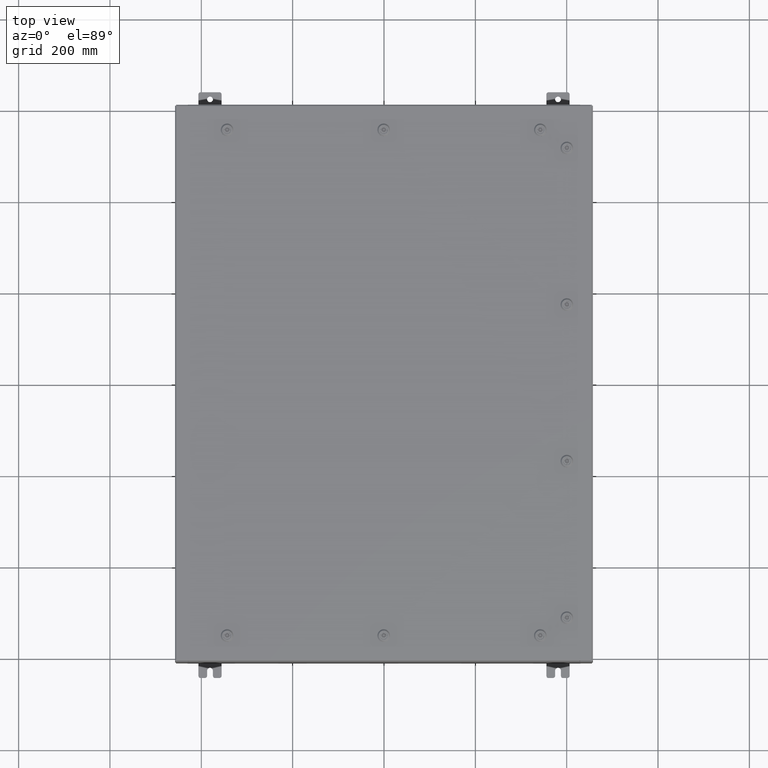
[diagram: clean part render]
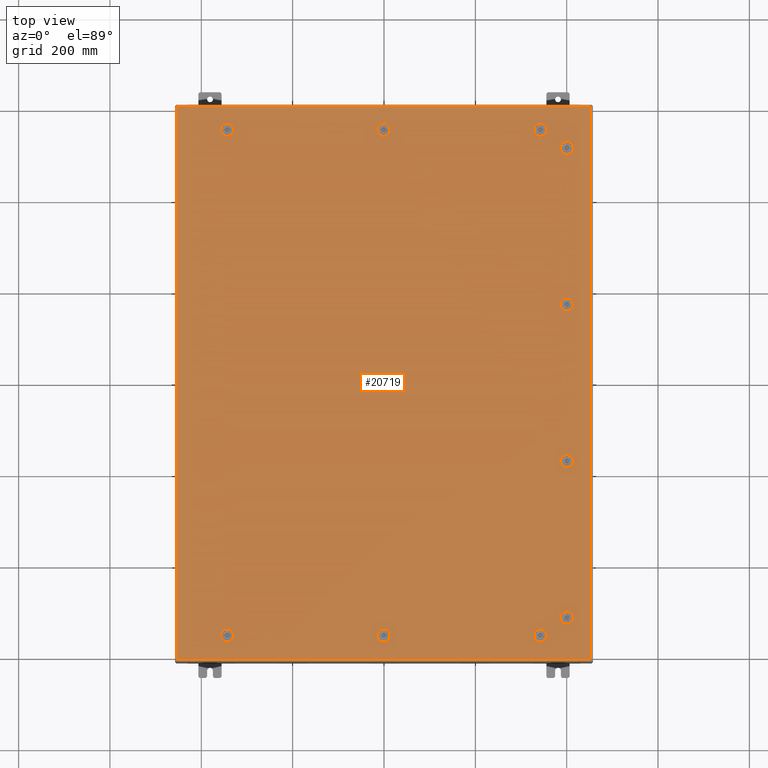
[diagram: same view with one face highlighted and labeled with its STEP entity id]
A machine part, top view. The second image highlights one B-rep face of the part: STEP entity #20719.
In plain terms, the highlighted planar face has unit normal (0, 0, -1).
Its self-contained STEP definition (entity closure, byte-faithful):
#64 = EDGE_CURVE ( 'NONE', #45328, #22910, #28201, .T. ) ;
#376 = VERTEX_POINT ( 'NONE', #35764 ) ;
#410 = DIRECTION ( 'NONE',  ( 1.000000000000000000, 0.0000000000000000000, 0.0000000000000000000 ) ) ;
#416 = DIRECTION ( 'NONE',  ( 1.000000000000000000, 1.095739467627832000E-014, 7.785697190085955000E-029 ) ) ;
#520 = VERTEX_POINT ( 'NONE', #58053 ) ;
#826 = DIRECTION ( 'NONE',  ( -0.0000000000000000000, -6.982962677686266700E-015, 1.000000000000000000 ) ) ;
#857 = CARTESIAN_POINT ( 'NONE',  ( 13.49999999999998600, -21.78780000000000400, -1.578617423656501800E-013 ) ) ;
#1201 = DIRECTION ( 'NONE',  ( 0.0000000000000000000, 1.000000000000000000, 6.982962677686269100E-015 ) ) ;
#1400 = EDGE_CURVE ( 'NONE', #64133, #20096, #14838, .T. ) ;
#1562 = LINE ( 'NONE', #1881, #9044 ) ;
#1629 = CARTESIAN_POINT ( 'NONE',  ( 16.18280000000001100, 20.44945237526789600, 0.0000000000000000000 ) ) ;
#1690 = CARTESIAN_POINT ( 'NONE',  ( -13.69945237526786700, 22.18280000000000400, 0.0000000000000000000 ) ) ;
#1783 = DIRECTION ( 'NONE',  ( -1.000000000000000000, 0.0000000000000000000, 7.785697190086061500E-029 ) ) ;
#1829 = CIRCLE ( 'NONE', #8031, 0.4424999999999983400 ) ;
#1881 = CARTESIAN_POINT ( 'NONE',  ( 17.84980000000000200, -23.84980000000000200, -2.048885995248197400E-016 ) ) ;
#1964 = VECTOR ( 'NONE', #30793, 39.37007874015748100 ) ;
#2079 = ORIENTED_EDGE ( 'NONE', *, *, #29690, .F. ) ;
#2109 = CARTESIAN_POINT ( 'NONE',  ( 13.69945237526786700, 22.18280000000000400, 0.0000000000000000000 ) ) ;
#2871 = LINE ( 'NONE', #65410, #17032 ) ;
#2882 = LINE ( 'NONE', #8183, #56088 ) ;
#3196 = ORIENTED_EDGE ( 'NONE', *, *, #64984, .F. ) ;
#3594 = DIRECTION ( 'NONE',  ( 6.982962677686266700E-015, -0.0000000000000000000, 1.000000000000000000 ) ) ;
#3622 = VERTEX_POINT ( 'NONE', #18824 ) ;
#3753 = DIRECTION ( 'NONE',  ( 5.478697338139235000E-015, 1.000000000000000000, 6.982962677686265900E-015 ) ) ;
#3797 = LINE ( 'NONE', #50948, #46161 ) ;
#3846 = VECTOR ( 'NONE', #18666, 39.37007874015748100 ) ;
#3862 = VECTOR ( 'NONE', #18571, 39.37007874015748100 ) ;
#4093 = DIRECTION ( 'NONE',  ( 0.0000000000000000000, 0.0000000000000000000, 1.000000000000000000 ) ) ;
#4572 = VECTOR ( 'NONE', #22143, 39.37007874015748100 ) ;
#4643 = VECTOR ( 'NONE', #43911, 39.37007874015748100 ) ;
#4702 = ORIENTED_EDGE ( 'NONE', *, *, #53695, .F. ) ;
#4711 = FACE_BOUND ( 'NONE', #19622, .T. ) ;
#4761 = DIRECTION ( 'NONE',  ( 0.0000000000000000000, 1.000000000000000000, 6.982962677686270700E-015 ) ) ;
#5083 = CARTESIAN_POINT ( 'NONE',  ( 1.529834876451987200E-014, 21.78780000000000400, 0.0000000000000000000 ) ) ;
#5088 = ORIENTED_EDGE ( 'NONE', *, *, #11692, .F. ) ;
#5163 = CIRCLE ( 'NONE', #62791, 0.4424999999999972800 ) ;
#5206 = VECTOR ( 'NONE', #21250, 39.37007874015748100 ) ;
#5235 = VERTEX_POINT ( 'NONE', #21047 ) ;
#5397 = VERTEX_POINT ( 'NONE', #48464 ) ;
#5567 = LINE ( 'NONE', #38118, #60434 ) ;
#5587 = CARTESIAN_POINT ( 'NONE',  ( -13.30054762473210200, 21.39280000000001200, 0.0000000000000000000 ) ) ;
#5670 = ORIENTED_EDGE ( 'NONE', *, *, #64998, .F. ) ;
#5844 = ORIENTED_EDGE ( 'NONE', *, *, #35891, .F. ) ;
#6122 = CARTESIAN_POINT ( 'NONE',  ( -13.69945237526786600, -22.18280000000000700, 0.0000000000000000000 ) ) ;
#6191 = DIRECTION ( 'NONE',  ( 1.000000000000000000, 0.0000000000000000000, 6.982962677686270700E-015 ) ) ;
#6255 = CIRCLE ( 'NONE', #53030, 0.4424999999999983400 ) ;
#6364 = FACE_BOUND ( 'NONE', #23998, .T. ) ;
#6383 = VERTEX_POINT ( 'NONE', #49609 ) ;
#6511 = CIRCLE ( 'NONE', #49168, 0.4424999999999961700 ) ;
#6704 = LINE ( 'NONE', #58465, #45724 ) ;
#6731 = EDGE_CURVE ( 'NONE', #11207, #40349, #41076, .T. ) ;
#7135 = EDGE_CURVE ( 'NONE', #22910, #47407, #27822, .T. ) ;
#7525 = ORIENTED_EDGE ( 'NONE', *, *, #9283, .F. ) ;
#7692 = VERTEX_POINT ( 'NONE', #5587 ) ;
#8031 = AXIS2_PLACEMENT_3D ( 'NONE', #64075, #32217, #410 ) ;
#8118 = CIRCLE ( 'NONE', #43655, 0.4424999999999983400 ) ;
#8127 = LINE ( 'NONE', #20515, #22275 ) ;
#8158 = VERTEX_POINT ( 'NONE', #62508 ) ;
#8160 = CARTESIAN_POINT ( 'NONE',  ( -0.1994523752678657400, 22.18280000000000400, 0.0000000000000000000 ) ) ;
#8183 = CARTESIAN_POINT ( 'NONE',  ( 15.39280000000002800, -20.44945237526790300, -1.427977627156185600E-013 ) ) ;
#8282 = VERTEX_POINT ( 'NONE', #46655 ) ;
#8297 = AXIS2_PLACEMENT_3D ( 'NONE', #56353, #24540, #61693 ) ;
#8313 = DIRECTION ( 'NONE',  ( 0.0000000000000000000, 0.0000000000000000000, 1.000000000000000000 ) ) ;
#8371 = EDGE_CURVE ( 'NONE', #68092, #65772, #31842, .T. ) ;
#8560 = CARTESIAN_POINT ( 'NONE',  ( 13.49999999999998600, 21.78780000000000400, -9.426999614876453700E-014 ) ) ;
#8577 = VECTOR ( 'NONE', #42460, 39.37007874015748100 ) ;
#8611 = CARTESIAN_POINT ( 'NONE',  ( 0.1994523752678995500, 21.39280000000001200, 0.0000000000000000000 ) ) ;
#8693 = VERTEX_POINT ( 'NONE', #22240 ) ;
#8748 = EDGE_LOOP ( 'NONE', ( #68154, #18350, #5844, #38252 ) ) ;
#9044 = VECTOR ( 'NONE', #49723, 39.37007874015748100 ) ;
#9147 = EDGE_CURVE ( 'NONE', #53752, #67250, #65062, .T. ) ;
#9283 = EDGE_CURVE ( 'NONE', #66983, #39752, #33467, .T. ) ;
#9347 = CARTESIAN_POINT ( 'NONE',  ( 0.4425000000000125500, 21.78780000000000400, 0.0000000000000000000 ) ) ;
#9432 = VECTOR ( 'NONE', #32180, 39.37007874015748100 ) ;
#9566 = CARTESIAN_POINT ( 'NONE',  ( 16.18280000000000400, -6.949452375267900300, -4.852776656685392100E-014 ) ) ;
#9648 = CARTESIAN_POINT ( 'NONE',  ( 17.84980000000000200, -23.84980000000000200, -2.048885995248197400E-016 ) ) ;
#9881 = CARTESIAN_POINT ( 'NONE',  ( -13.49999999999998200, -21.78780000000000800, -2.521317385144146900E-013 ) ) ;
#10064 = CARTESIAN_POINT ( 'NONE',  ( 15.39280000000001400, 6.550547624732131700, 0.0000000000000000000 ) ) ;
#10242 = LINE ( 'NONE', #37182, #8577 ) ;
#10321 = CARTESIAN_POINT ( 'NONE',  ( 13.49999999999998600, 21.78780000000000400, -9.426999614876453700E-014 ) ) ;
#10420 = DIRECTION ( 'NONE',  ( 1.000000000000000000, 0.0000000000000000000, 0.0000000000000000000 ) ) ;
#10447 = CIRCLE ( 'NONE', #24469, 0.4424999999999961700 ) ;
#11207 = VERTEX_POINT ( 'NONE', #21695 ) ;
#11581 = VERTEX_POINT ( 'NONE', #18638 ) ;
#11692 = EDGE_CURVE ( 'NONE', #7692, #36077, #63611, .T. ) ;
#11884 = ORIENTED_EDGE ( 'NONE', *, *, #64254, .F. ) ;
#12111 = LINE ( 'NONE', #34814, #38685 ) ;
#12265 = CARTESIAN_POINT ( 'NONE',  ( -13.49999999999998200, -21.78780000000000800, -2.521317385144146900E-013 ) ) ;
#13095 = CARTESIAN_POINT ( 'NONE',  ( -13.05749999999998900, 21.78780000000000400, 0.0000000000000000000 ) ) ;
#13424 = VERTEX_POINT ( 'NONE', #20734 ) ;
#13460 = DIRECTION ( 'NONE',  ( 1.000000000000000000, -0.0000000000000000000, -0.0000000000000000000 ) ) ;
#13831 = DIRECTION ( 'NONE',  ( 1.000000000000000000, -0.0000000000000000000, -0.0000000000000000000 ) ) ;
#13917 = DIRECTION ( 'NONE',  ( -1.000000000000000000, 0.0000000000000000000, 6.982962677686269100E-015 ) ) ;
#13982 = CIRCLE ( 'NONE', #45812, 0.4424999999999983400 ) ;
#14136 = CARTESIAN_POINT ( 'NONE',  ( 1.529834876451987200E-014, -21.78780000000000400, -2.521317385144146900E-013 ) ) ;
#14146 = CARTESIAN_POINT ( 'NONE',  ( 0.1994523752678995500, 21.39280000000001200, 0.0000000000000000000 ) ) ;
#14253 = CARTESIAN_POINT ( 'NONE',  ( 13.49999999999998600, -21.78780000000000400, -1.578617423656501800E-013 ) ) ;
#14347 = EDGE_CURVE ( 'NONE', #36633, #47819, #40094, .T. ) ;
#14838 = CIRCLE ( 'NONE', #56496, 0.4424999999999961700 ) ;
#14917 = VERTEX_POINT ( 'NONE', #55037 ) ;
#15055 = CARTESIAN_POINT ( 'NONE',  ( 0.1994523752679054600, -22.18280000000000000, -2.548900087721007400E-013 ) ) ;
#15244 = DIRECTION ( 'NONE',  ( 0.0000000000000000000, 1.000000000000000000, 6.982962677686270700E-015 ) ) ;
#15700 = DIRECTION ( 'NONE',  ( -1.000000000000000000, 0.0000000000000000000, 6.982962677686270700E-015 ) ) ;
#16122 = EDGE_CURVE ( 'NONE', #8282, #11207, #63295, .T. ) ;
#16785 = DIRECTION ( 'NONE',  ( -0.0000000000000000000, -6.982962677686266700E-015, 1.000000000000000000 ) ) ;
#16809 = AXIS2_PLACEMENT_3D ( 'NONE', #50515, #18741, #55868 ) ;
#16840 = ORIENTED_EDGE ( 'NONE', *, *, #33159, .F. ) ;
#17032 = VECTOR ( 'NONE', #1783, 39.37007874015748100 ) ;
#17058 = LINE ( 'NONE', #32782, #4572 ) ;
#17312 = VERTEX_POINT ( 'NONE', #6122 ) ;
#17337 = CIRCLE ( 'NONE', #56316, 0.4424999999999983400 ) ;
#17638 = DIRECTION ( 'NONE',  ( 0.0000000000000000000, 1.000000000000000000, 6.982962677686270700E-015 ) ) ;
#17682 = VERTEX_POINT ( 'NONE', #45544 ) ;
#17818 = AXIS2_PLACEMENT_3D ( 'NONE', #12265, #49411, #17638 ) ;
#18317 = ORIENTED_EDGE ( 'NONE', *, *, #9147, .F. ) ;
#18350 = ORIENTED_EDGE ( 'NONE', *, *, #64, .F. ) ;
#18363 = EDGE_CURVE ( 'NONE', #60996, #54736, #1562, .T. ) ;
#18411 = CARTESIAN_POINT ( 'NONE',  ( 15.39280000000002200, 20.44945237526790300, 0.0000000000000000000 ) ) ;
#18412 = ORIENTED_EDGE ( 'NONE', *, *, #63286, .F. ) ;
#18460 = CARTESIAN_POINT ( 'NONE',  ( 17.84980000000000200, 23.84980000000000900, 1.946441695485787500E-015 ) ) ;
#18461 = ORIENTED_EDGE ( 'NONE', *, *, #8371, .F. ) ;
#18571 = DIRECTION ( 'NONE',  ( 1.095739467627835000E-014, -1.000000000000000000, -6.982962677686269100E-015 ) ) ;
#18638 = CARTESIAN_POINT ( 'NONE',  ( 15.39280000000001900, 20.05054762473213300, 0.0000000000000000000 ) ) ;
#18666 = DIRECTION ( 'NONE',  ( -1.000000000000000000, -1.095739467627832000E-014, 6.982962677686228800E-015 ) ) ;
#18717 = ORIENTED_EDGE ( 'NONE', *, *, #55647, .F. ) ;
#18741 = DIRECTION ( 'NONE',  ( -6.982962677686266700E-015, -6.982962677686266700E-015, 1.000000000000000000 ) ) ;
#18811 = EDGE_CURVE ( 'NONE', #67420, #6383, #52232, .T. ) ;
#18824 = CARTESIAN_POINT ( 'NONE',  ( 15.39280000000001500, -6.949452375267905600, -4.852776656685395900E-014 ) ) ;
#18870 = FACE_BOUND ( 'NONE', #60195, .T. ) ;
#18958 = DIRECTION ( 'NONE',  ( -0.0000000000000000000, -6.982962677686266700E-015, 1.000000000000000000 ) ) ;
#19485 = DIRECTION ( 'NONE',  ( 0.0000000000000000000, 1.000000000000000000, 6.982962677686270700E-015 ) ) ;
#19556 = DIRECTION ( 'NONE',  ( 0.0000000000000000000, 0.0000000000000000000, 1.000000000000000000 ) ) ;
#19600 = DIRECTION ( 'NONE',  ( 1.000000000000000000, 0.0000000000000000000, 6.982962677686304600E-015 ) ) ;
#19610 = LINE ( 'NONE', #46564, #1964 ) ;
#19622 = EDGE_LOOP ( 'NONE', ( #11884, #31061, #5670, #2079, #38067 ) ) ;
#19700 = LINE ( 'NONE', #44744, #3862 ) ;
#19852 = VERTEX_POINT ( 'NONE', #30731 ) ;
#20096 = VERTEX_POINT ( 'NONE', #53699 ) ;
#20317 = ORIENTED_EDGE ( 'NONE', *, *, #24867, .T. ) ;
#20332 = CARTESIAN_POINT ( 'NONE',  ( 16.18280000000000700, 6.949452375267900300, 0.0000000000000000000 ) ) ;
#20515 = CARTESIAN_POINT ( 'NONE',  ( -13.30054762473209900, -21.39280000000001500, -2.493734682567286900E-013 ) ) ;
#20719 = ADVANCED_FACE ( 'NONE', ( #62907, #6364, #48729, #47044, #32956, #61225, #18870, #4711, #59566, #45377, #31272 ), #27593, .F. ) ;
#20734 = CARTESIAN_POINT ( 'NONE',  ( 13.30054762473210400, -21.39280000000001200, -1.564962406004356200E-013 ) ) ;
#20848 = ORIENTED_EDGE ( 'NONE', *, *, #34410, .F. ) ;
#21047 = CARTESIAN_POINT ( 'NONE',  ( 16.18280000000001500, -20.44945237526789600, -1.427977627156185100E-013 ) ) ;
#21079 = CARTESIAN_POINT ( 'NONE',  ( 15.78780000000001500, 20.25000000000001400, 0.0000000000000000000 ) ) ;
#21161 = EDGE_LOOP ( 'NONE', ( #40757, #30968, #21164, #39572 ) ) ;
#21164 = ORIENTED_EDGE ( 'NONE', *, *, #32519, .F. ) ;
#21250 = DIRECTION ( 'NONE',  ( -1.000000000000000000, 1.095739467627836100E-014, 0.0000000000000000000 ) ) ;
#21307 = DIRECTION ( 'NONE',  ( 1.000000000000000000, 1.095739467627836100E-014, 7.785697190085984100E-029 ) ) ;
#21467 = CIRCLE ( 'NONE', #59304, 0.4424999999999969000 ) ;
#21695 = CARTESIAN_POINT ( 'NONE',  ( 16.18280000000001100, 20.44945237526789600, 0.0000000000000000000 ) ) ;
#22143 = DIRECTION ( 'NONE',  ( -1.095739467627844000E-014, -1.000000000000000000, 0.0000000000000000000 ) ) ;
#22240 = CARTESIAN_POINT ( 'NONE',  ( -17.84979999999999800, -23.84980000000000200, 1.946441695485787500E-015 ) ) ;
#22275 = VECTOR ( 'NONE', #46915, 39.37007874015748100 ) ;
#22465 = VECTOR ( 'NONE', #67451, 39.37007874015748100 ) ;
#22628 = EDGE_CURVE ( 'NONE', #40349, #11581, #17058, .T. ) ;
#22840 = ORIENTED_EDGE ( 'NONE', *, *, #44826, .F. ) ;
#22910 = VERTEX_POINT ( 'NONE', #45718 ) ;
#23421 = ORIENTED_EDGE ( 'NONE', *, *, #25276, .F. ) ;
#23444 = DIRECTION ( 'NONE',  ( 5.478697338139280000E-015, 1.000000000000000000, 6.982962677686382700E-015 ) ) ;
#23962 = EDGE_CURVE ( 'NONE', #47155, #3622, #19700, .T. ) ;
#23998 = EDGE_LOOP ( 'NONE', ( #59432, #20848, #53613, #27242 ) ) ;
#24138 = LINE ( 'NONE', #40942, #22465 ) ;
#24265 = CIRCLE ( 'NONE', #42226, 0.4424999999999983400 ) ;
#24469 = AXIS2_PLACEMENT_3D ( 'NONE', #8560, #45675, #13917 ) ;
#24540 = DIRECTION ( 'NONE',  ( -0.0000000000000000000, -6.982962677686266700E-015, 1.000000000000000000 ) ) ;
#24867 = EDGE_CURVE ( 'NONE', #8693, #60996, #3797, .T. ) ;
#25276 = EDGE_CURVE ( 'NONE', #376, #41666, #6255, .T. ) ;
#25790 = CARTESIAN_POINT ( 'NONE',  ( 15.78780000000001000, 6.750000000000014200, 0.0000000000000000000 ) ) ;
#26009 = ORIENTED_EDGE ( 'NONE', *, *, #49087, .F. ) ;
#26409 = DIRECTION ( 'NONE',  ( 1.000000000000000000, 0.0000000000000000000, 0.0000000000000000000 ) ) ;
#26687 = CARTESIAN_POINT ( 'NONE',  ( -13.30054762473209200, -22.18280000000000400, -2.548900087721007400E-013 ) ) ;
#26990 = DIRECTION ( 'NONE',  ( 1.000000000000000000, 0.0000000000000000000, 0.0000000000000000000 ) ) ;
#26993 = CIRCLE ( 'NONE', #29846, 0.4424999999999972800 ) ;
#27016 = EDGE_LOOP ( 'NONE', ( #20317, #48997, #33533, #62348 ) ) ;
#27170 = LINE ( 'NONE', #52988, #53029 ) ;
#27242 = ORIENTED_EDGE ( 'NONE', *, *, #32368, .F. ) ;
#27593 = PLANE ( 'NONE',  #31012 ) ;
#27760 = CARTESIAN_POINT ( 'NONE',  ( 15.78780000000001800, -20.25000000000001400, -1.414049942231469700E-013 ) ) ;
#27822 = LINE ( 'NONE', #28743, #68492 ) ;
#28062 = CARTESIAN_POINT ( 'NONE',  ( 15.78780000000001500, 20.25000000000001400, 0.0000000000000000000 ) ) ;
#28201 = CIRCLE ( 'NONE', #53320, 0.4424999999999983400 ) ;
#28571 = CIRCLE ( 'NONE', #58709, 0.4424999999999983400 ) ;
#28656 = CARTESIAN_POINT ( 'NONE',  ( -13.05749999999998700, -21.78780000000000800, -2.521317385144146900E-013 ) ) ;
#28743 = CARTESIAN_POINT ( 'NONE',  ( 16.18280000000000700, 6.949452375267900300, 0.0000000000000000000 ) ) ;
#28826 = ORIENTED_EDGE ( 'NONE', *, *, #48481, .F. ) ;
#29074 = EDGE_LOOP ( 'NONE', ( #4702, #49873, #50651, #28826, #18317 ) ) ;
#29111 = ORIENTED_EDGE ( 'NONE', *, *, #6731, .F. ) ;
#29297 = DIRECTION ( 'NONE',  ( 0.0000000000000000000, -1.000000000000000000, 0.0000000000000000000 ) ) ;
#29551 = ORIENTED_EDGE ( 'NONE', *, *, #40216, .F. ) ;
#29690 = EDGE_CURVE ( 'NONE', #6383, #47312, #51808, .T. ) ;
#29846 = AXIS2_PLACEMENT_3D ( 'NONE', #40075, #8313, #45416 ) ;
#30436 = LINE ( 'NONE', #55801, #3846 ) ;
#30482 = DIRECTION ( 'NONE',  ( 0.0000000000000000000, 0.0000000000000000000, 1.000000000000000000 ) ) ;
#30731 = CARTESIAN_POINT ( 'NONE',  ( -13.69945237526786700, -21.39280000000001500, -2.493734682567286400E-013 ) ) ;
#30793 = DIRECTION ( 'NONE',  ( -1.000000000000000000, 1.095739467627832000E-014, 0.0000000000000000000 ) ) ;
#30805 = VERTEX_POINT ( 'NONE', #66217 ) ;
#30839 = VERTEX_POINT ( 'NONE', #45261 ) ;
#30946 = CIRCLE ( 'NONE', #17818, 0.4424999999999983400 ) ;
#30968 = ORIENTED_EDGE ( 'NONE', *, *, #51685, .F. ) ;
#31012 = AXIS2_PLACEMENT_3D ( 'NONE', #59404, #64743, #32899 ) ;
#31061 = ORIENTED_EDGE ( 'NONE', *, *, #14347, .F. ) ;
#31079 = DIRECTION ( 'NONE',  ( 1.000000000000000000, 0.0000000000000000000, 0.0000000000000000000 ) ) ;
#31272 = FACE_OUTER_BOUND ( 'NONE', #27016, .T. ) ;
#31683 = ORIENTED_EDGE ( 'NONE', *, *, #39949, .F. ) ;
#31842 = LINE ( 'NONE', #14146, #45964 ) ;
#32180 = DIRECTION ( 'NONE',  ( 1.000000000000000000, 0.0000000000000000000, -6.982962677686306200E-015 ) ) ;
#32217 = DIRECTION ( 'NONE',  ( 0.0000000000000000000, 0.0000000000000000000, 1.000000000000000000 ) ) ;
#32368 = EDGE_CURVE ( 'NONE', #3622, #64532, #56439, .T. ) ;
#32450 = AXIS2_PLACEMENT_3D ( 'NONE', #35428, #3594, #40718 ) ;
#32519 = EDGE_CURVE ( 'NONE', #5235, #52849, #60568, .T. ) ;
#32594 = ORIENTED_EDGE ( 'NONE', *, *, #59003, .F. ) ;
#32632 = CARTESIAN_POINT ( 'NONE',  ( 1.529834876451987200E-014, -21.78780000000000400, -2.521317385144146900E-013 ) ) ;
#32782 = CARTESIAN_POINT ( 'NONE',  ( 15.39280000000002200, 20.44945237526790300, 0.0000000000000000000 ) ) ;
#32841 = EDGE_LOOP ( 'NONE', ( #53269, #49388, #61495, #29111 ) ) ;
#32899 = DIRECTION ( 'NONE',  ( -1.000000000000000000, 0.0000000000000000000, -0.0000000000000000000 ) ) ;
#32956 = FACE_BOUND ( 'NONE', #41896, .T. ) ;
#33024 = DIRECTION ( 'NONE',  ( -0.0000000000000000000, -6.982962677686266700E-015, 1.000000000000000000 ) ) ;
#33041 = EDGE_CURVE ( 'NONE', #11581, #8282, #6511, .T. ) ;
#33078 = DIRECTION ( 'NONE',  ( 0.0000000000000000000, 1.000000000000000000, 6.982962677686235200E-015 ) ) ;
#33159 = EDGE_CURVE ( 'NONE', #55656, #56872, #17337, .T. ) ;
#33303 = AXIS2_PLACEMENT_3D ( 'NONE', #14136, #51260, #19485 ) ;
#33445 = DIRECTION ( 'NONE',  ( -5.478697338139280000E-015, 1.000000000000000000, -0.0000000000000000000 ) ) ;
#33467 = LINE ( 'NONE', #53057, #5206 ) ;
#33533 = ORIENTED_EDGE ( 'NONE', *, *, #51514, .T. ) ;
#33967 = VECTOR ( 'NONE', #23444, 39.37007874015748100 ) ;
#34085 = AXIS2_PLACEMENT_3D ( 'NONE', #10321, #47429, #15700 ) ;
#34410 = EDGE_CURVE ( 'NONE', #59221, #47155, #35509, .T. ) ;
#34814 = CARTESIAN_POINT ( 'NONE',  ( -13.30054762473210200, 21.39280000000001200, 0.0000000000000000000 ) ) ;
#35008 = VERTEX_POINT ( 'NONE', #56822 ) ;
#35428 = CARTESIAN_POINT ( 'NONE',  ( 13.49999999999998600, 21.78780000000000400, -9.426999614876453700E-014 ) ) ;
#35509 = CIRCLE ( 'NONE', #8297, 0.4424999999999983400 ) ;
#35764 = CARTESIAN_POINT ( 'NONE',  ( 13.69945237526786900, -22.18280000000000400, -1.592272441308647100E-013 ) ) ;
#35891 = EDGE_CURVE ( 'NONE', #42624, #45328, #45319, .T. ) ;
#35920 = CARTESIAN_POINT ( 'NONE',  ( 1.529834876451987200E-014, 21.78780000000000400, 0.0000000000000000000 ) ) ;
#35973 = VERTEX_POINT ( 'NONE', #39289 ) ;
#36077 = VERTEX_POINT ( 'NONE', #13095 ) ;
#36314 = CIRCLE ( 'NONE', #33303, 0.4424999999999983400 ) ;
#36589 = DIRECTION ( 'NONE',  ( -0.0000000000000000000, -6.982962677686266700E-015, 1.000000000000000000 ) ) ;
#36633 = VERTEX_POINT ( 'NONE', #49867 ) ;
#37182 = CARTESIAN_POINT ( 'NONE',  ( 13.30054762473209500, -22.18280000000000000, -1.620127811158077400E-013 ) ) ;
#37404 = DIRECTION ( 'NONE',  ( -1.000000000000000000, -0.0000000000000000000, -6.982962677686265900E-015 ) ) ;
#37434 = ORIENTED_EDGE ( 'NONE', *, *, #48985, .F. ) ;
#37726 = ORIENTED_EDGE ( 'NONE', *, *, #50848, .F. ) ;
#37990 = DIRECTION ( 'NONE',  ( 0.0000000000000000000, 1.000000000000000000, 6.982962677686270700E-015 ) ) ;
#38019 = DIRECTION ( 'NONE',  ( -6.982962677686266700E-015, -6.982962677686266700E-015, 1.000000000000000000 ) ) ;
#38067 = ORIENTED_EDGE ( 'NONE', *, *, #18811, .F. ) ;
#38118 = CARTESIAN_POINT ( 'NONE',  ( 13.30054762473210400, -21.39280000000001200, -1.564962406004356200E-013 ) ) ;
#38252 = ORIENTED_EDGE ( 'NONE', *, *, #49751, .F. ) ;
#38337 = EDGE_CURVE ( 'NONE', #19852, #17312, #13982, .T. ) ;
#38429 = DIRECTION ( 'NONE',  ( 1.000000000000000000, 0.0000000000000000000, 0.0000000000000000000 ) ) ;
#38685 = VECTOR ( 'NONE', #13460, 39.37007874015748100 ) ;
#38794 = ORIENTED_EDGE ( 'NONE', *, *, #56246, .F. ) ;
#38878 = VECTOR ( 'NONE', #416, 39.37007874015748100 ) ;
#39289 = CARTESIAN_POINT ( 'NONE',  ( 13.30054762473209500, -22.18280000000000000, -1.620127811158077400E-013 ) ) ;
#39572 = ORIENTED_EDGE ( 'NONE', *, *, #47237, .F. ) ;
#39722 = EDGE_CURVE ( 'NONE', #30805, #8693, #27170, .T. ) ;
#39752 = VERTEX_POINT ( 'NONE', #8160 ) ;
#39778 = DIRECTION ( 'NONE',  ( -5.478697338139235000E-015, 1.000000000000000000, -0.0000000000000000000 ) ) ;
#39949 = EDGE_CURVE ( 'NONE', #39752, #68092, #21467, .T. ) ;
#40075 = CARTESIAN_POINT ( 'NONE',  ( 1.529834876451987200E-014, 21.78780000000000400, 0.0000000000000000000 ) ) ;
#40094 = CIRCLE ( 'NONE', #32450, 0.4424999999999961700 ) ;
#40216 = EDGE_CURVE ( 'NONE', #30839, #5397, #8118, .T. ) ;
#40349 = VERTEX_POINT ( 'NONE', #18411 ) ;
#40497 = VERTEX_POINT ( 'NONE', #51335 ) ;
#40718 = DIRECTION ( 'NONE',  ( -1.000000000000000000, 0.0000000000000000000, 6.982962677686269100E-015 ) ) ;
#40757 = ORIENTED_EDGE ( 'NONE', *, *, #45713, .F. ) ;
#40942 = CARTESIAN_POINT ( 'NONE',  ( 17.84980000000000200, 23.84980000000000900, 1.946441695485787500E-015 ) ) ;
#41076 = CIRCLE ( 'NONE', #47269, 0.4424999999999961700 ) ;
#41198 = DIRECTION ( 'NONE',  ( 1.000000000000000000, 0.0000000000000000000, 0.0000000000000000000 ) ) ;
#41402 = ORIENTED_EDGE ( 'NONE', *, *, #44260, .F. ) ;
#41565 = DIRECTION ( 'NONE',  ( 1.000000000000000000, 0.0000000000000000000, 0.0000000000000000000 ) ) ;
#41666 = VERTEX_POINT ( 'NONE', #64163 ) ;
#41729 = DIRECTION ( 'NONE',  ( 1.000000000000000000, -0.0000000000000000000, -0.0000000000000000000 ) ) ;
#41896 = EDGE_LOOP ( 'NONE', ( #18412, #22840, #23421, #38794, #37726 ) ) ;
#42153 = DIRECTION ( 'NONE',  ( 0.0000000000000000000, 0.0000000000000000000, 1.000000000000000000 ) ) ;
#42226 = AXIS2_PLACEMENT_3D ( 'NONE', #25790, #62935, #31079 ) ;
#42460 = DIRECTION ( 'NONE',  ( 1.000000000000000000, -1.095739467627832000E-014, 6.982962677686152300E-015 ) ) ;
#42624 = VERTEX_POINT ( 'NONE', #56079 ) ;
#43441 = LINE ( 'NONE', #47526, #57665 ) ;
#43655 = AXIS2_PLACEMENT_3D ( 'NONE', #48547, #16785, #53931 ) ;
#43911 = DIRECTION ( 'NONE',  ( -1.095739467627835000E-014, -1.000000000000000000, 0.0000000000000000000 ) ) ;
#43961 = CIRCLE ( 'NONE', #64195, 0.4424999999999983400 ) ;
#44260 = EDGE_CURVE ( 'NONE', #40497, #30839, #2871, .T. ) ;
#44744 = CARTESIAN_POINT ( 'NONE',  ( 15.39280000000001500, -6.949452375267904700, -4.852776656685395200E-014 ) ) ;
#44826 = EDGE_CURVE ( 'NONE', #41666, #35008, #53532, .T. ) ;
#45261 = CARTESIAN_POINT ( 'NONE',  ( -0.1994523752678689600, -21.39280000000001200, -2.493734682567286400E-013 ) ) ;
#45319 = LINE ( 'NONE', #49297, #4643 ) ;
#45328 = VERTEX_POINT ( 'NONE', #10064 ) ;
#45377 = FACE_BOUND ( 'NONE', #67786, .T. ) ;
#45416 = DIRECTION ( 'NONE',  ( 1.000000000000000000, 0.0000000000000000000, 0.0000000000000000000 ) ) ;
#45544 = CARTESIAN_POINT ( 'NONE',  ( -13.30054762473209900, -21.39280000000001500, -2.493734682567286900E-013 ) ) ;
#45625 = DIRECTION ( 'NONE',  ( 0.0000000000000000000, 0.0000000000000000000, 1.000000000000000000 ) ) ;
#45675 = DIRECTION ( 'NONE',  ( 6.982962677686266700E-015, -0.0000000000000000000, 1.000000000000000000 ) ) ;
#45713 = EDGE_CURVE ( 'NONE', #14917, #8158, #2882, .T. ) ;
#45718 = CARTESIAN_POINT ( 'NONE',  ( 16.18280000000000700, 6.550547624732131700, 0.0000000000000000000 ) ) ;
#45724 = VECTOR ( 'NONE', #21307, 39.37007874015748100 ) ;
#45812 = AXIS2_PLACEMENT_3D ( 'NONE', #68371, #36589, #4761 ) ;
#45964 = VECTOR ( 'NONE', #41729, 39.37007874015748100 ) ;
#46161 = VECTOR ( 'NONE', #13831, 39.37007874015748100 ) ;
#46564 = CARTESIAN_POINT ( 'NONE',  ( -13.30054762473209400, 22.18280000000000000, 0.0000000000000000000 ) ) ;
#46655 = CARTESIAN_POINT ( 'NONE',  ( 16.18280000000001500, 20.05054762473213300, 0.0000000000000000000 ) ) ;
#46716 = CARTESIAN_POINT ( 'NONE',  ( -13.49999999999998600, 21.78780000000000400, 0.0000000000000000000 ) ) ;
#46915 = DIRECTION ( 'NONE',  ( -1.000000000000000000, 0.0000000000000000000, 7.785697190086082800E-029 ) ) ;
#46986 = DIRECTION ( 'NONE',  ( -0.0000000000000000000, -6.982962677686266700E-015, 1.000000000000000000 ) ) ;
#47044 = FACE_BOUND ( 'NONE', #8748, .T. ) ;
#47155 = VERTEX_POINT ( 'NONE', #50270 ) ;
#47211 = ORIENTED_EDGE ( 'NONE', *, *, #1400, .F. ) ;
#47237 = EDGE_CURVE ( 'NONE', #8158, #5235, #28571, .T. ) ;
#47269 = AXIS2_PLACEMENT_3D ( 'NONE', #28062, #57051, #38429 ) ;
#47312 = VERTEX_POINT ( 'NONE', #56561 ) ;
#47407 = VERTEX_POINT ( 'NONE', #20332 ) ;
#47429 = DIRECTION ( 'NONE',  ( 6.982962677686266700E-015, -0.0000000000000000000, 1.000000000000000000 ) ) ;
#47526 = CARTESIAN_POINT ( 'NONE',  ( 16.18280000000000400, -6.949452375267900300, -4.852776656685392100E-014 ) ) ;
#47635 = EDGE_LOOP ( 'NONE', ( #3196, #47211, #18717, #26009, #5088 ) ) ;
#47819 = VERTEX_POINT ( 'NONE', #2109 ) ;
#48033 = CARTESIAN_POINT ( 'NONE',  ( 16.18280000000001800, -20.05054762473213300, -1.400122257306754800E-013 ) ) ;
#48464 = CARTESIAN_POINT ( 'NONE',  ( -0.1994523752678657400, -22.18280000000000700, 0.0000000000000000000 ) ) ;
#48481 = EDGE_CURVE ( 'NONE', #67250, #17682, #30946, .T. ) ;
#48547 = CARTESIAN_POINT ( 'NONE',  ( 1.529834876451987200E-014, -21.78780000000000400, -2.521317385144146900E-013 ) ) ;
#48729 = FACE_BOUND ( 'NONE', #32841, .T. ) ;
#48985 = EDGE_CURVE ( 'NONE', #57459, #66983, #5163, .T. ) ;
#48997 = ORIENTED_EDGE ( 'NONE', *, *, #18363, .T. ) ;
#49087 = EDGE_CURVE ( 'NONE', #36077, #520, #1829, .T. ) ;
#49124 = VECTOR ( 'NONE', #33445, 39.37007874015748100 ) ;
#49168 = AXIS2_PLACEMENT_3D ( 'NONE', #21079, #58236, #26409 ) ;
#49297 = CARTESIAN_POINT ( 'NONE',  ( 15.39280000000001900, 6.949452375267904700, 0.0000000000000000000 ) ) ;
#49388 = ORIENTED_EDGE ( 'NONE', *, *, #33041, .F. ) ;
#49411 = DIRECTION ( 'NONE',  ( -0.0000000000000000000, -6.982962677686266700E-015, 1.000000000000000000 ) ) ;
#49609 = CARTESIAN_POINT ( 'NONE',  ( 13.30054762473210200, 21.39280000000001200, -9.287722765629301200E-014 ) ) ;
#49723 = DIRECTION ( 'NONE',  ( 0.0000000000000000000, 1.000000000000000000, 0.0000000000000000000 ) ) ;
#49751 = EDGE_CURVE ( 'NONE', #47407, #42624, #24265, .T. ) ;
#49867 = CARTESIAN_POINT ( 'NONE',  ( 13.94249999999998300, 21.78780000000000400, -9.735995713364067600E-014 ) ) ;
#49873 = ORIENTED_EDGE ( 'NONE', *, *, #38337, .F. ) ;
#50270 = CARTESIAN_POINT ( 'NONE',  ( 15.39280000000001200, -6.550547624732131700, 0.0000000000000000000 ) ) ;
#50515 = CARTESIAN_POINT ( 'NONE',  ( 13.49999999999998600, -21.78780000000000400, -1.578617423656501800E-013 ) ) ;
#50651 = ORIENTED_EDGE ( 'NONE', *, *, #62707, .F. ) ;
#50729 = CARTESIAN_POINT ( 'NONE',  ( 15.78780000000001800, -20.25000000000001400, -1.414049942231469700E-013 ) ) ;
#50848 = EDGE_CURVE ( 'NONE', #13424, #35973, #58244, .T. ) ;
#50948 = CARTESIAN_POINT ( 'NONE',  ( -17.84979999999999800, -23.84980000000000200, 1.946441695485787500E-015 ) ) ;
#51130 = CARTESIAN_POINT ( 'NONE',  ( 13.30054762473209400, 22.18280000000000000, -9.287722765629296100E-014 ) ) ;
#51260 = DIRECTION ( 'NONE',  ( -0.0000000000000000000, -6.982962677686266700E-015, 1.000000000000000000 ) ) ;
#51334 = CARTESIAN_POINT ( 'NONE',  ( -13.49999999999998600, 21.78780000000000400, 0.0000000000000000000 ) ) ;
#51335 = CARTESIAN_POINT ( 'NONE',  ( 0.1994523752678995500, -21.39280000000001200, -2.493734682567286900E-013 ) ) ;
#51356 = LINE ( 'NONE', #26687, #38878 ) ;
#51382 = DIRECTION ( 'NONE',  ( -6.982962677686266700E-015, -6.982962677686266700E-015, 1.000000000000000000 ) ) ;
#51514 = EDGE_CURVE ( 'NONE', #54736, #30805, #24138, .T. ) ;
#51685 = EDGE_CURVE ( 'NONE', #52849, #14917, #43961, .T. ) ;
#51808 = LINE ( 'NONE', #53338, #9432 ) ;
#52232 = CIRCLE ( 'NONE', #34085, 0.4424999999999983400 ) ;
#52428 = AXIS2_PLACEMENT_3D ( 'NONE', #51334, #19556, #56698 ) ;
#52849 = VERTEX_POINT ( 'NONE', #48033 ) ;
#52988 = CARTESIAN_POINT ( 'NONE',  ( -17.84979999999998100, 23.84980000000000900, -1.297627796990525000E-015 ) ) ;
#53029 = VECTOR ( 'NONE', #29297, 39.37007874015748100 ) ;
#53030 = AXIS2_PLACEMENT_3D ( 'NONE', #857, #38019, #6191 ) ;
#53057 = CARTESIAN_POINT ( 'NONE',  ( 0.1994523752679067700, 22.18280000000000000, 0.0000000000000000000 ) ) ;
#53269 = ORIENTED_EDGE ( 'NONE', *, *, #16122, .F. ) ;
#53320 = AXIS2_PLACEMENT_3D ( 'NONE', #60465, #45625, #41565 ) ;
#53338 = CARTESIAN_POINT ( 'NONE',  ( 13.30054762473210200, 21.39280000000001200, -9.287722765629301200E-014 ) ) ;
#53532 = CIRCLE ( 'NONE', #16809, 0.4424999999999983400 ) ;
#53613 = ORIENTED_EDGE ( 'NONE', *, *, #67557, .F. ) ;
#53695 = EDGE_CURVE ( 'NONE', #17312, #53752, #51356, .T. ) ;
#53699 = CARTESIAN_POINT ( 'NONE',  ( -13.69945237526786900, 21.39280000000001200, 0.0000000000000000000 ) ) ;
#53752 = VERTEX_POINT ( 'NONE', #63857 ) ;
#53931 = DIRECTION ( 'NONE',  ( 0.0000000000000000000, 1.000000000000000000, 6.982962677686270700E-015 ) ) ;
#54695 = CARTESIAN_POINT ( 'NONE',  ( 0.1994523752679054600, 22.18280000000000000, 0.0000000000000000000 ) ) ;
#54736 = VERTEX_POINT ( 'NONE', #18460 ) ;
#55037 = CARTESIAN_POINT ( 'NONE',  ( 15.39280000000002200, -20.05054762473213300, 0.0000000000000000000 ) ) ;
#55647 = EDGE_CURVE ( 'NONE', #520, #64133, #19610, .T. ) ;
#55656 = VERTEX_POINT ( 'NONE', #15055 ) ;
#55662 = CARTESIAN_POINT ( 'NONE',  ( 16.18280000000000700, -6.550547624732131700, -4.574222958191090100E-014 ) ) ;
#55801 = CARTESIAN_POINT ( 'NONE',  ( 13.30054762473209400, 22.18280000000000000, -9.287722765629296100E-014 ) ) ;
#55868 = DIRECTION ( 'NONE',  ( 1.000000000000000000, 0.0000000000000000000, 6.982962677686270700E-015 ) ) ;
#56017 = DIRECTION ( 'NONE',  ( 1.095739467627844000E-014, -1.000000000000000000, -6.982962677686384300E-015 ) ) ;
#56079 = CARTESIAN_POINT ( 'NONE',  ( 15.39280000000001900, 6.949452375267904700, 0.0000000000000000000 ) ) ;
#56084 = DIRECTION ( 'NONE',  ( 0.0000000000000000000, 1.000000000000000000, 6.982962677686235200E-015 ) ) ;
#56088 = VECTOR ( 'NONE', #56017, 39.37007874015748100 ) ;
#56246 = EDGE_CURVE ( 'NONE', #35973, #376, #10242, .T. ) ;
#56316 = AXIS2_PLACEMENT_3D ( 'NONE', #32632, #826, #37990 ) ;
#56353 = CARTESIAN_POINT ( 'NONE',  ( 15.78780000000000800, -6.750000000000014200, -4.713499807438240100E-014 ) ) ;
#56439 = CIRCLE ( 'NONE', #66073, 0.4424999999999972800 ) ;
#56496 = AXIS2_PLACEMENT_3D ( 'NONE', #46716, #30482, #26990 ) ;
#56561 = CARTESIAN_POINT ( 'NONE',  ( 13.69945237526786900, 21.39280000000001200, -9.566276464123603800E-014 ) ) ;
#56698 = DIRECTION ( 'NONE',  ( 1.000000000000000000, 0.0000000000000000000, 0.0000000000000000000 ) ) ;
#56822 = CARTESIAN_POINT ( 'NONE',  ( 13.69945237526787100, -21.39280000000001200, 0.0000000000000000000 ) ) ;
#56872 = VERTEX_POINT ( 'NONE', #58423 ) ;
#57051 = DIRECTION ( 'NONE',  ( 0.0000000000000000000, 0.0000000000000000000, 1.000000000000000000 ) ) ;
#57459 = VERTEX_POINT ( 'NONE', #9347 ) ;
#57665 = VECTOR ( 'NONE', #3753, 39.37007874015748100 ) ;
#58053 = CARTESIAN_POINT ( 'NONE',  ( -13.30054762473209400, 22.18280000000000000, 0.0000000000000000000 ) ) ;
#58236 = DIRECTION ( 'NONE',  ( 0.0000000000000000000, 0.0000000000000000000, 1.000000000000000000 ) ) ;
#58244 = CIRCLE ( 'NONE', #63288, 0.4424999999999961700 ) ;
#58423 = CARTESIAN_POINT ( 'NONE',  ( 0.4425000000000125500, -21.78780000000000400, -2.521317385144146900E-013 ) ) ;
#58465 = CARTESIAN_POINT ( 'NONE',  ( 0.1994523752679067700, -22.18280000000000000, -2.548900087721007400E-013 ) ) ;
#58709 = AXIS2_PLACEMENT_3D ( 'NONE', #50729, #18958, #56084 ) ;
#59003 = EDGE_CURVE ( 'NONE', #5397, #55656, #6704, .T. ) ;
#59221 = VERTEX_POINT ( 'NONE', #55662 ) ;
#59304 = AXIS2_PLACEMENT_3D ( 'NONE', #35920, #4093, #41198 ) ;
#59404 = CARTESIAN_POINT ( 'NONE',  ( 0.0000000000000000000, 0.0000000000000000000, 0.0000000000000000000 ) ) ;
#59432 = ORIENTED_EDGE ( 'NONE', *, *, #23962, .F. ) ;
#59566 = FACE_BOUND ( 'NONE', #47635, .T. ) ;
#60195 = EDGE_LOOP ( 'NONE', ( #32594, #29551, #41402, #62430, #16840 ) ) ;
#60434 = VECTOR ( 'NONE', #37404, 39.37007874015748100 ) ;
#60465 = CARTESIAN_POINT ( 'NONE',  ( 15.78780000000001000, 6.750000000000014200, 0.0000000000000000000 ) ) ;
#60568 = LINE ( 'NONE', #60576, #33967 ) ;
#60576 = CARTESIAN_POINT ( 'NONE',  ( 16.18280000000001500, -20.44945237526789600, -1.427977627156185100E-013 ) ) ;
#60996 = VERTEX_POINT ( 'NONE', #9648 ) ;
#61225 = FACE_BOUND ( 'NONE', #29074, .T. ) ;
#61495 = ORIENTED_EDGE ( 'NONE', *, *, #22628, .F. ) ;
#61693 = DIRECTION ( 'NONE',  ( 0.0000000000000000000, 1.000000000000000000, 6.982962677686252500E-015 ) ) ;
#62348 = ORIENTED_EDGE ( 'NONE', *, *, #39722, .T. ) ;
#62430 = ORIENTED_EDGE ( 'NONE', *, *, #63710, .F. ) ;
#62508 = CARTESIAN_POINT ( 'NONE',  ( 15.39280000000002800, -20.44945237526790300, -1.427977627156185100E-013 ) ) ;
#62707 = EDGE_CURVE ( 'NONE', #17682, #19852, #8127, .T. ) ;
#62791 = AXIS2_PLACEMENT_3D ( 'NONE', #5083, #42153, #10420 ) ;
#62907 = FACE_BOUND ( 'NONE', #21161, .T. ) ;
#62935 = DIRECTION ( 'NONE',  ( 0.0000000000000000000, 0.0000000000000000000, 1.000000000000000000 ) ) ;
#63286 = EDGE_CURVE ( 'NONE', #35008, #13424, #5567, .T. ) ;
#63288 = AXIS2_PLACEMENT_3D ( 'NONE', #14253, #51382, #19600 ) ;
#63295 = LINE ( 'NONE', #1629, #49124 ) ;
#63611 = CIRCLE ( 'NONE', #52428, 0.4424999999999983400 ) ;
#63710 = EDGE_CURVE ( 'NONE', #56872, #40497, #36314, .T. ) ;
#63746 = ORIENTED_EDGE ( 'NONE', *, *, #66343, .F. ) ;
#63857 = CARTESIAN_POINT ( 'NONE',  ( -13.30054762473209200, -22.18280000000000400, -2.548900087721007400E-013 ) ) ;
#64075 = CARTESIAN_POINT ( 'NONE',  ( -13.49999999999998600, 21.78780000000000400, 0.0000000000000000000 ) ) ;
#64133 = VERTEX_POINT ( 'NONE', #1690 ) ;
#64163 = CARTESIAN_POINT ( 'NONE',  ( 13.94249999999998500, -21.78780000000000400, -1.547717813807740000E-013 ) ) ;
#64195 = AXIS2_PLACEMENT_3D ( 'NONE', #27760, #64905, #33078 ) ;
#64254 = EDGE_CURVE ( 'NONE', #47819, #67420, #30436, .T. ) ;
#64532 = VERTEX_POINT ( 'NONE', #9566 ) ;
#64743 = DIRECTION ( 'NONE',  ( 0.0000000000000000000, 0.0000000000000000000, -1.000000000000000000 ) ) ;
#64853 = CARTESIAN_POINT ( 'NONE',  ( 15.78780000000000800, -6.750000000000014200, -4.713499807438240100E-014 ) ) ;
#64905 = DIRECTION ( 'NONE',  ( -0.0000000000000000000, -6.982962677686266700E-015, 1.000000000000000000 ) ) ;
#64984 = EDGE_CURVE ( 'NONE', #20096, #7692, #12111, .T. ) ;
#64998 = EDGE_CURVE ( 'NONE', #47312, #36633, #10447, .T. ) ;
#65062 = CIRCLE ( 'NONE', #67858, 0.4424999999999983400 ) ;
#65410 = CARTESIAN_POINT ( 'NONE',  ( 0.1994523752678995500, -21.39280000000001200, -2.493734682567286900E-013 ) ) ;
#65772 = VERTEX_POINT ( 'NONE', #8611 ) ;
#66073 = AXIS2_PLACEMENT_3D ( 'NONE', #64853, #33024, #1201 ) ;
#66217 = CARTESIAN_POINT ( 'NONE',  ( -17.84979999999998100, 23.84980000000000900, -1.297627796990525000E-015 ) ) ;
#66343 = EDGE_CURVE ( 'NONE', #65772, #57459, #26993, .T. ) ;
#66983 = VERTEX_POINT ( 'NONE', #54695 ) ;
#67250 = VERTEX_POINT ( 'NONE', #28656 ) ;
#67420 = VERTEX_POINT ( 'NONE', #51130 ) ;
#67451 = DIRECTION ( 'NONE',  ( -1.000000000000000000, -0.0000000000000000000, -0.0000000000000000000 ) ) ;
#67557 = EDGE_CURVE ( 'NONE', #64532, #59221, #43441, .T. ) ;
#67786 = EDGE_LOOP ( 'NONE', ( #18461, #31683, #7525, #37434, #63746 ) ) ;
#67858 = AXIS2_PLACEMENT_3D ( 'NONE', #9881, #46986, #15244 ) ;
#68086 = CARTESIAN_POINT ( 'NONE',  ( -0.1994523752678689600, 21.39280000000001200, 0.0000000000000000000 ) ) ;
#68092 = VERTEX_POINT ( 'NONE', #68086 ) ;
#68154 = ORIENTED_EDGE ( 'NONE', *, *, #7135, .F. ) ;
#68371 = CARTESIAN_POINT ( 'NONE',  ( -13.49999999999998200, -21.78780000000000800, -2.521317385144146900E-013 ) ) ;
#68492 = VECTOR ( 'NONE', #39778, 39.37007874015748100 ) ;